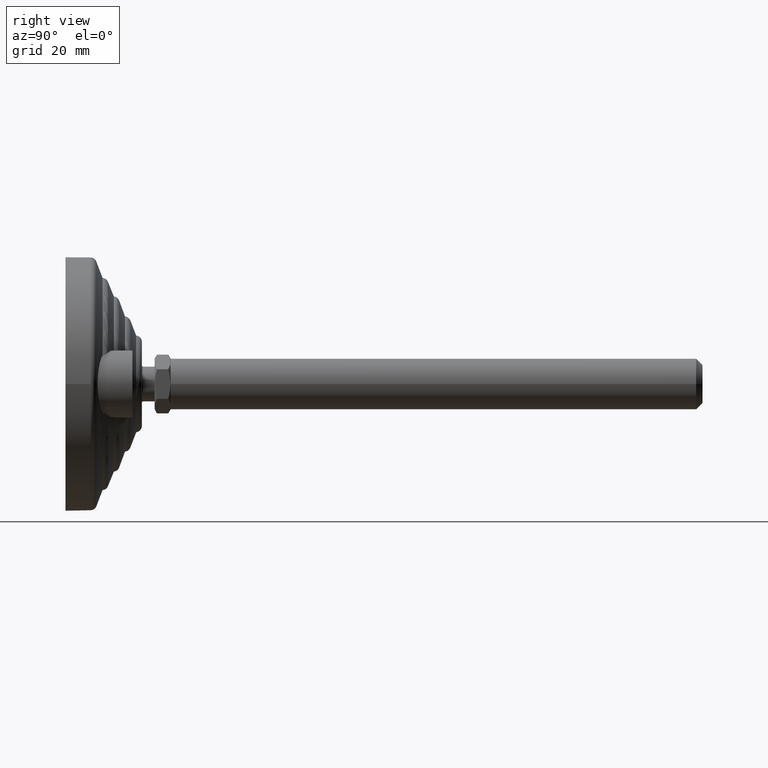
[diagram: clean part render]
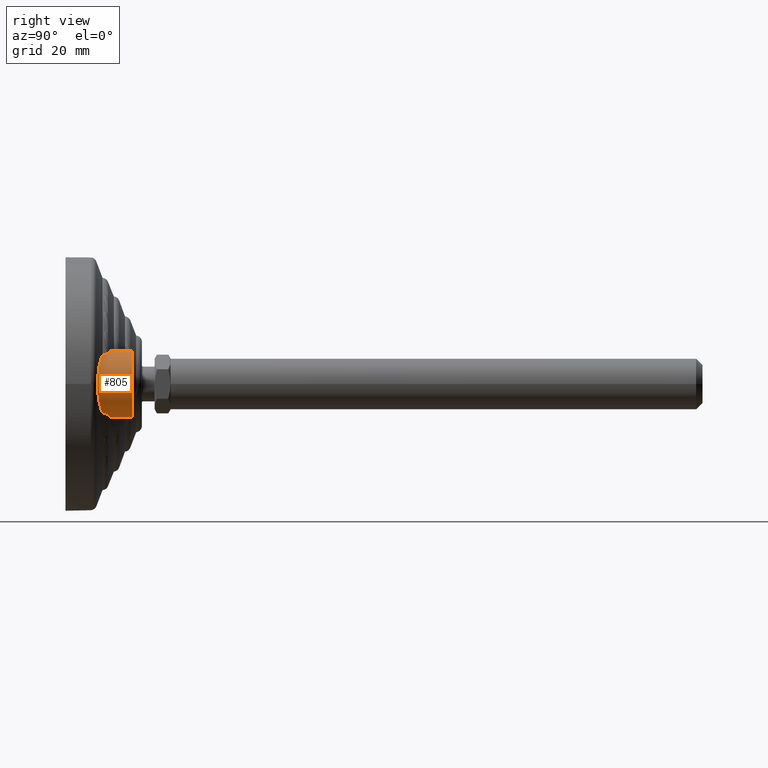
[diagram: same view with one face highlighted and labeled with its STEP entity id]
A machine part, right view. The second image highlights one B-rep face of the part: STEP entity #805.
In plain terms, the highlighted cylindrical surface (edge-blend (fillet) strip) has radius 10.5 mm, axis along (0, -1, 0).
Its self-contained STEP definition (entity closure, byte-faithful):
#63=CYLINDRICAL_SURFACE('',#966,10.5);
#94=B_SPLINE_CURVE_WITH_KNOTS('',3,(#1251,#1252,#1253,#1254,#1255,#1256,
#1257,#1258,#1259,#1260,#1261,#1262),.UNSPECIFIED.,.F.,.F.,(4,2,2,2,2,4),
(2.08063056382818,2.33542865542635,2.59022674702452,2.84502483862269,3.09982293022086,
3.16026059184862),.UNSPECIFIED.);
#97=B_SPLINE_CURVE_WITH_KNOTS('',3,(#1293,#1294,#1295,#1296,#1297,#1298,
#1299,#1300,#1301,#1302,#1303,#1304),.UNSPECIFIED.,.F.,.F.,(4,2,2,2,2,4),
(1.00100053580773,1.06143819743549,1.31623628903366,1.57103438063183,1.82583247223,
2.08063056382818),.UNSPECIFIED.);
#106=B_SPLINE_CURVE_WITH_KNOTS('',3,(#1453,#1454,#1455,#1456,#1457,#1458,
#1459,#1460,#1461,#1462),.UNSPECIFIED.,.F.,.F.,(4,2,2,2,4),(-0.272169011460622,
-0.206673864768747,-0.119790041486489,-0.0555152369709458,-0.0171393644475443),
 .UNSPECIFIED.);
#108=B_SPLINE_CURVE_WITH_KNOTS('',3,(#1475,#1476,#1477,#1478,#1479,#1480,
#1481,#1482,#1483,#1484),.UNSPECIFIED.,.F.,.F.,(4,2,2,2,4),(-1.34250230493453,
-1.30785611308365,-1.25331155550976,-1.1612624973397,-1.0931682822097),
 .UNSPECIFIED.);
#112=B_SPLINE_CURVE_WITH_KNOTS('',3,(#1581,#1582,#1583,#1584,#1585,#1586),
 .UNSPECIFIED.,.F.,.F.,(4,2,4),(0.435128689238069,0.529691843282031,0.820299322112635),
 .UNSPECIFIED.);
#113=B_SPLINE_CURVE_WITH_KNOTS('',3,(#1587,#1588,#1589,#1590,#1591,#1592),
 .UNSPECIFIED.,.F.,.F.,(4,2,4),(3.33584065151674,3.62644813034734,3.7210112843913),
 .UNSPECIFIED.);
#145=FACE_OUTER_BOUND('',#192,.T.);
#192=EDGE_LOOP('',(#661,#662,#663,#664,#665,#666,#667,#668,#669));
#233=LINE('',#1550,#260);
#234=LINE('',#1557,#261);
#260=VECTOR('',#1129,6.3774577463435);
#261=VECTOR('',#1132,6.3774577463435);
#313=CIRCLE('',#964,10.5);
#330=VERTEX_POINT('',#1248);
#331=VERTEX_POINT('',#1250);
#335=VERTEX_POINT('',#1291);
#363=VERTEX_POINT('',#1451);
#364=VERTEX_POINT('',#1474);
#378=VERTEX_POINT('',#1541);
#379=VERTEX_POINT('',#1548);
#380=VERTEX_POINT('',#1552);
#381=VERTEX_POINT('',#1556);
#417=EDGE_CURVE('',#330,#331,#94,.T.);
#422=EDGE_CURVE('',#335,#330,#97,.T.);
#455=EDGE_CURVE('',#363,#335,#106,.T.);
#457=EDGE_CURVE('',#331,#364,#108,.T.);
#479=EDGE_CURVE('',#378,#379,#233,.T.);
#481=EDGE_CURVE('',#380,#381,#234,.T.);
#487=EDGE_CURVE('',#379,#381,#313,.T.);
#491=EDGE_CURVE('',#378,#363,#112,.T.);
#492=EDGE_CURVE('',#364,#380,#113,.T.);
#661=ORIENTED_EDGE('',*,*,#491,.F.);
#662=ORIENTED_EDGE('',*,*,#479,.T.);
#663=ORIENTED_EDGE('',*,*,#487,.T.);
#664=ORIENTED_EDGE('',*,*,#481,.F.);
#665=ORIENTED_EDGE('',*,*,#492,.F.);
#666=ORIENTED_EDGE('',*,*,#457,.F.);
#667=ORIENTED_EDGE('',*,*,#417,.F.);
#668=ORIENTED_EDGE('',*,*,#422,.F.);
#669=ORIENTED_EDGE('',*,*,#455,.F.);
#805=ADVANCED_FACE('',(#145),#63,.T.);
#964=AXIS2_PLACEMENT_3D('',#1571,#1139,#1140);
#966=AXIS2_PLACEMENT_3D('',#1580,#1144,#1145);
#1129=DIRECTION('',(0.,1.,0.));
#1132=DIRECTION('',(0.,1.,0.));
#1139=DIRECTION('center_axis',(0.,-1.,0.));
#1140=DIRECTION('ref_axis',(0.,0.,1.));
#1144=DIRECTION('center_axis',(0.,-1.,0.));
#1145=DIRECTION('ref_axis',(0.,0.,1.));
#1248=CARTESIAN_POINT('',(37.5,10.0799933034086,2.32389248903259E-15));
#1250=CARTESIAN_POINT('',(32.3063360973724,11.6343896633681,9.06050755872555));
#1251=CARTESIAN_POINT('Ctrl Pts',(37.5,10.0799933034086,-3.46944695195361E-16));
#1252=CARTESIAN_POINT('Ctrl Pts',(37.5,10.0799933034086,0.849326971993903));
#1253=CARTESIAN_POINT('Ctrl Pts',(37.3954081081618,10.1095537846386,1.7162549637648));
#1254=CARTESIAN_POINT('Ctrl Pts',(36.9700156185367,10.2309093737991,3.40717322759572));
#1255=CARTESIAN_POINT('Ctrl Pts',(36.6493278685147,10.3226891385099,4.23119298843608));
#1256=CARTESIAN_POINT('Ctrl Pts',(35.8178344612948,10.5643978000669,5.7670026229962));
#1257=CARTESIAN_POINT('Ctrl Pts',(35.3059660725661,10.7146871863577,6.48070832783638));
#1258=CARTESIAN_POINT('Ctrl Pts',(34.1415490632157,11.0639846751723,7.74512297053743));
#1259=CARTESIAN_POINT('Ctrl Pts',(33.4889279688686,11.2631123545329,8.29573212712396));
#1260=CARTESIAN_POINT('Ctrl Pts',(32.641651817313,11.5284577657608,8.85775154482925));
#1261=CARTESIAN_POINT('Ctrl Pts',(32.4756290831059,11.5807422055193,8.96136019027992));
#1262=CARTESIAN_POINT('Ctrl Pts',(32.3063360973724,11.6343896633682,9.06050755872554));
#1291=CARTESIAN_POINT('',(32.3063360973724,11.6343896633681,-9.06050755872555));
#1293=CARTESIAN_POINT('Ctrl Pts',(32.3063360973724,11.6343896633682,-9.06050755872553));
#1294=CARTESIAN_POINT('Ctrl Pts',(32.4756290831059,11.5807422055193,-8.96136019027991));
#1295=CARTESIAN_POINT('Ctrl Pts',(32.641651817313,11.5284577657608,-8.85775154482924));
#1296=CARTESIAN_POINT('Ctrl Pts',(33.4889279688686,11.2631123545329,-8.29573212712396));
#1297=CARTESIAN_POINT('Ctrl Pts',(34.1415490632157,11.0639846751723,-7.74512297053743));
#1298=CARTESIAN_POINT('Ctrl Pts',(35.3059660725661,10.7146871863577,-6.48070832783638));
#1299=CARTESIAN_POINT('Ctrl Pts',(35.8178344612948,10.5643978000669,-5.7670026229962));
#1300=CARTESIAN_POINT('Ctrl Pts',(36.6493278685147,10.3226891385099,-4.23119298843608));
#1301=CARTESIAN_POINT('Ctrl Pts',(36.9700156185367,10.2309093737991,-3.40717322759573));
#1302=CARTESIAN_POINT('Ctrl Pts',(37.3954081081618,10.1095537846386,-1.71625496376481));
#1303=CARTESIAN_POINT('Ctrl Pts',(37.5,10.0799933034086,-0.849326971993903));
#1304=CARTESIAN_POINT('Ctrl Pts',(37.5,10.0799933034086,-3.46944695195361E-16));
#1451=CARTESIAN_POINT('',(30.7243523480937,13.3536735555763,-9.81729084764472));
#1453=CARTESIAN_POINT('Ctrl Pts',(30.7243523480937,13.3536735555763,-9.81729084764473));
#1454=CARTESIAN_POINT('Ctrl Pts',(30.9269336777935,13.2895206185697,-9.74043825535056));
#1455=CARTESIAN_POINT('Ctrl Pts',(31.1203951590663,13.2027239828022,-9.65974903299947));
#1456=CARTESIAN_POINT('Ctrl Pts',(31.5363810385897,12.9517947973315,-9.47305844350508));
#1457=CARTESIAN_POINT('Ctrl Pts',(31.7518355665092,12.7690383424399,-9.36525787547107));
#1458=CARTESIAN_POINT('Ctrl Pts',(32.0513621703683,12.3871051564537,-9.20622260062833));
#1459=CARTESIAN_POINT('Ctrl Pts',(32.1554168514334,12.2038781059998,-9.14756670705056));
#1460=CARTESIAN_POINT('Ctrl Pts',(32.2653715864553,11.8837691796782,-9.08449820997783));
#1461=CARTESIAN_POINT('Ctrl Pts',(32.293108898622,11.7603294563103,-9.06825414044203));
#1462=CARTESIAN_POINT('Ctrl Pts',(32.3063360973725,11.6343896633681,-9.06050755872551));
#1474=CARTESIAN_POINT('',(30.7243523480937,13.3536735555763,9.81729084764473));
#1475=CARTESIAN_POINT('Ctrl Pts',(32.3063360973724,11.6343896633681,9.06050755872552));
#1476=CARTESIAN_POINT('Ctrl Pts',(32.2944061287548,11.7479781718539,9.06749441047813));
#1477=CARTESIAN_POINT('Ctrl Pts',(32.270683279782,11.8594235436489,9.08138163084829));
#1478=CARTESIAN_POINT('Ctrl Pts',(32.1815789120219,12.1384624392739,9.132644311859));
#1479=CARTESIAN_POINT('Ctrl Pts',(32.1017988600934,12.2963304649361,9.17790309393391));
#1480=CARTESIAN_POINT('Ctrl Pts',(31.8402238368093,12.6809822782326,9.31971782156739));
#1481=CARTESIAN_POINT('Ctrl Pts',(31.6184051368934,12.8918483292,9.43420045013403));
#1482=CARTESIAN_POINT('Ctrl Pts',(31.1601258003481,13.1847739484002,9.64309155385952));
#1483=CARTESIAN_POINT('Ctrl Pts',(30.9473186237771,13.2830651660485,9.73270488749805));
#1484=CARTESIAN_POINT('Ctrl Pts',(30.7243523480937,13.3536735555763,9.81729084764474));
#1541=CARTESIAN_POINT('',(27.,14.6225422536565,-10.5));
#1548=CARTESIAN_POINT('',(27.,21.,-10.5));
#1550=CARTESIAN_POINT('',(27.,14.6225422536565,-10.5));
#1552=CARTESIAN_POINT('',(27.,14.6225422536565,10.5));
#1556=CARTESIAN_POINT('',(27.,21.,10.5));
#1557=CARTESIAN_POINT('',(27.,14.6225422536565,10.5));
#1571=CARTESIAN_POINT('Origin',(27.,21.,1.77635683940025E-15));
#1580=CARTESIAN_POINT('Origin',(27.,1.,1.77635683940025E-15));
#1581=CARTESIAN_POINT('Ctrl Pts',(27.,14.6225422536565,-10.5));
#1582=CARTESIAN_POINT('Ctrl Pts',(27.3100625601747,14.5109163877395,-10.5));
#1583=CARTESIAN_POINT('Ctrl Pts',(27.6208747110214,14.4006946398294,-10.4862470382709));
#1584=CARTESIAN_POINT('Ctrl Pts',(28.8835374298766,13.9591533364497,-10.373863285386));
#1585=CARTESIAN_POINT('Ctrl Pts',(29.8300063230366,13.6428573128393,-10.1565758673229));
#1586=CARTESIAN_POINT('Ctrl Pts',(30.7243523480937,13.3536735555763,-9.81729084764473));
#1587=CARTESIAN_POINT('Ctrl Pts',(30.7243523480937,13.3536735555763,9.81729084764473));
#1588=CARTESIAN_POINT('Ctrl Pts',(29.8300063230366,13.6428573128393,10.1565758673229));
#1589=CARTESIAN_POINT('Ctrl Pts',(28.8835374298766,13.9591533364497,10.373863285386));
#1590=CARTESIAN_POINT('Ctrl Pts',(27.6208747110214,14.4006946398294,10.4862470382709));
#1591=CARTESIAN_POINT('Ctrl Pts',(27.3100625601747,14.5109163877395,10.5));
#1592=CARTESIAN_POINT('Ctrl Pts',(27.,14.6225422536565,10.5));